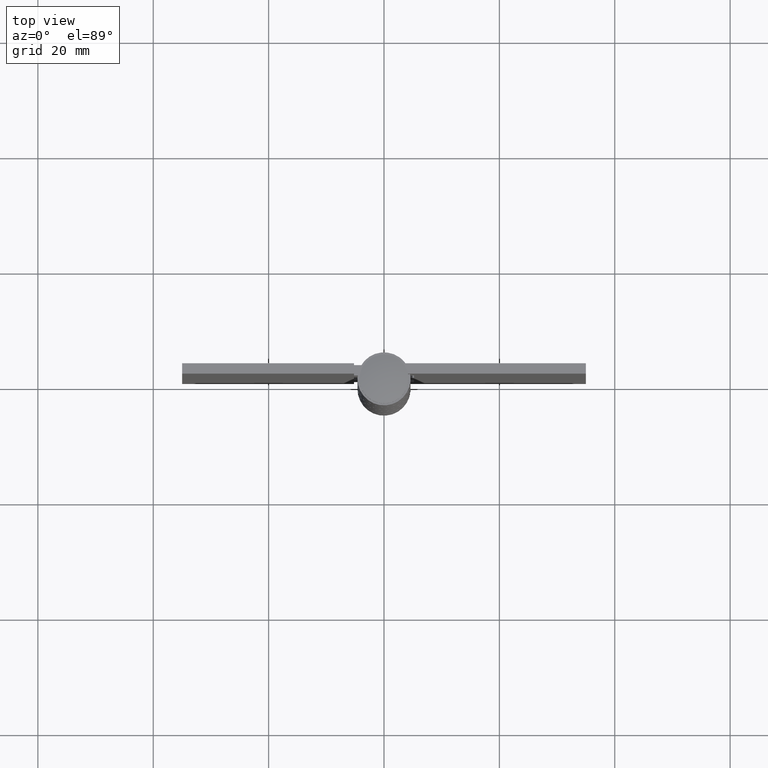
[diagram: clean part render]
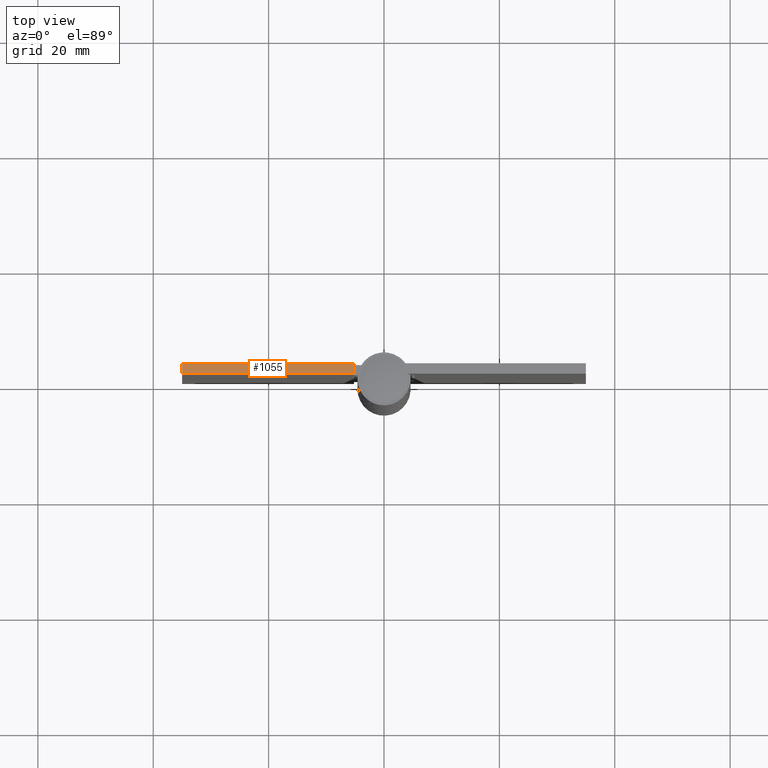
[diagram: same view with one face highlighted and labeled with its STEP entity id]
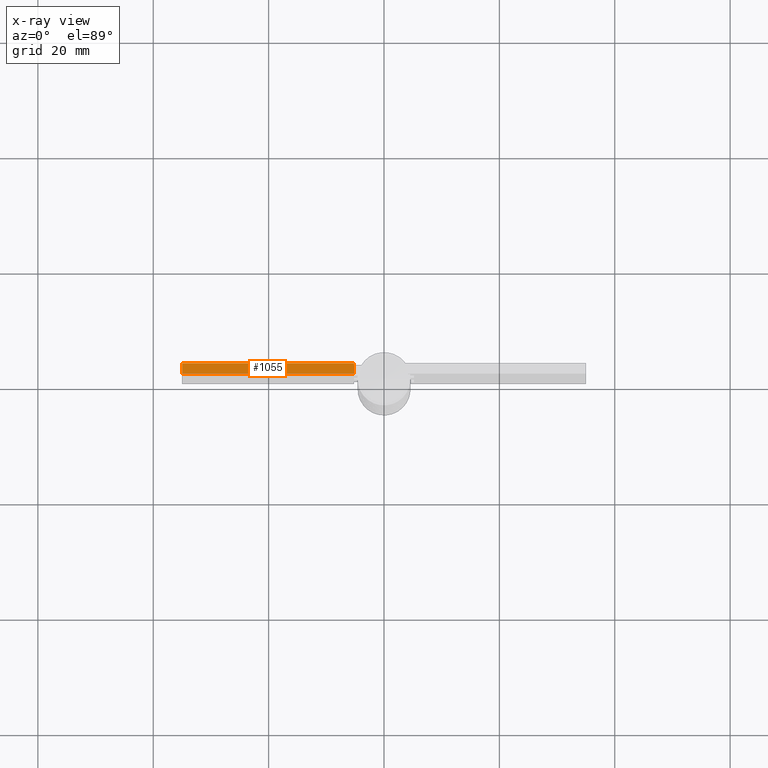
[diagram: x-ray of the same camera — body ghosted, the highlighted face saturated]
A machine part, top view. The second image highlights one B-rep face of the part: STEP entity #1055.
The next image is the same camera in x-ray: the body ghosted, the highlighted face saturated — about 0% of this face is hidden behind the body in this view.
In plain terms, the highlighted face is a freeform B-spline surface patch.
Its self-contained STEP definition (entity closure, byte-faithful):
#636=CARTESIAN_POINT('',(-35.0,2.699999000000000,102.000015000000200));
#637=VERTEX_POINT('',#636);
#643=CARTESIAN_POINT('',(-5.199997000000000,2.699999000000000,102.000015000000200));
#644=VERTEX_POINT('',#643);
#645=CARTESIAN_POINT('',(-35.0,2.699999000000000,102.000015000000200));
#646=CARTESIAN_POINT('',(-5.199997000000000,2.699999000000000,102.000015000000200));
#647=QUASI_UNIFORM_CURVE('',1,(#645,#646),.UNSPECIFIED.,.F.,.U.);
#648=EDGE_CURVE('',#637,#644,#647,.T.);
#664=CARTESIAN_POINT('',(-5.199997000000000,0.900000000000012,102.000015000000000));
#665=VERTEX_POINT('',#664);
#666=CARTESIAN_POINT('',(-5.199997000000000,0.900000000000012,102.000015000000000));
#667=CARTESIAN_POINT('',(-5.199997000000000,2.699999000000000,102.000015000000200));
#668=QUASI_UNIFORM_CURVE('',1,(#666,#667),.UNSPECIFIED.,.F.,.U.);
#669=EDGE_CURVE('',#665,#644,#668,.T.);
#1034=CARTESIAN_POINT('',(-36.488510092091822,0.810090053438760,102.000015000000200));
#1035=CARTESIAN_POINT('',(-3.711486108609824,0.810090053438760,102.000015000000200));
#1036=CARTESIAN_POINT('',(-36.488510092091822,2.789908994840987,102.000015000000200));
#1037=CARTESIAN_POINT('',(-3.711486108609824,2.789908994840987,102.000015000000200));
#1038=B_SPLINE_SURFACE_WITH_KNOTS('',1,1,((#1034,#1036),(#1035,#1037)),.UNSPECIFIED.,.F.,.F.,.U.,(2,2),(2,2),(0.0,32.777023983481989),(0.0,1.979818941402227),.UNSPECIFIED.);
#1039=CARTESIAN_POINT('',(-35.0,0.900000000000034,102.000015000000200));
#1040=VERTEX_POINT('',#1039);
#1041=CARTESIAN_POINT('',(-5.199997000000000,0.900000000000012,102.000015000000000));
#1042=CARTESIAN_POINT('',(-35.0,0.900000000000034,102.000015000000200));
#1043=QUASI_UNIFORM_CURVE('',1,(#1041,#1042),.UNSPECIFIED.,.F.,.U.);
#1044=EDGE_CURVE('',#665,#1040,#1043,.T.);
#1045=ORIENTED_EDGE('',*,*,#1044,.F.);
#1046=ORIENTED_EDGE('',*,*,#669,.T.);
#1047=ORIENTED_EDGE('',*,*,#648,.F.);
#1048=CARTESIAN_POINT('',(-35.0,0.900000000000034,102.000015000000200));
#1049=CARTESIAN_POINT('',(-35.0,2.699999000000000,102.000015000000200));
#1050=QUASI_UNIFORM_CURVE('',1,(#1048,#1049),.UNSPECIFIED.,.F.,.U.);
#1051=EDGE_CURVE('',#1040,#637,#1050,.T.);
#1052=ORIENTED_EDGE('',*,*,#1051,.F.);
#1053=EDGE_LOOP('',(#1045,#1046,#1047,#1052));
#1054=FACE_OUTER_BOUND('',#1053,.T.);
#1055=ADVANCED_FACE('',(#1054),#1038,.T.);